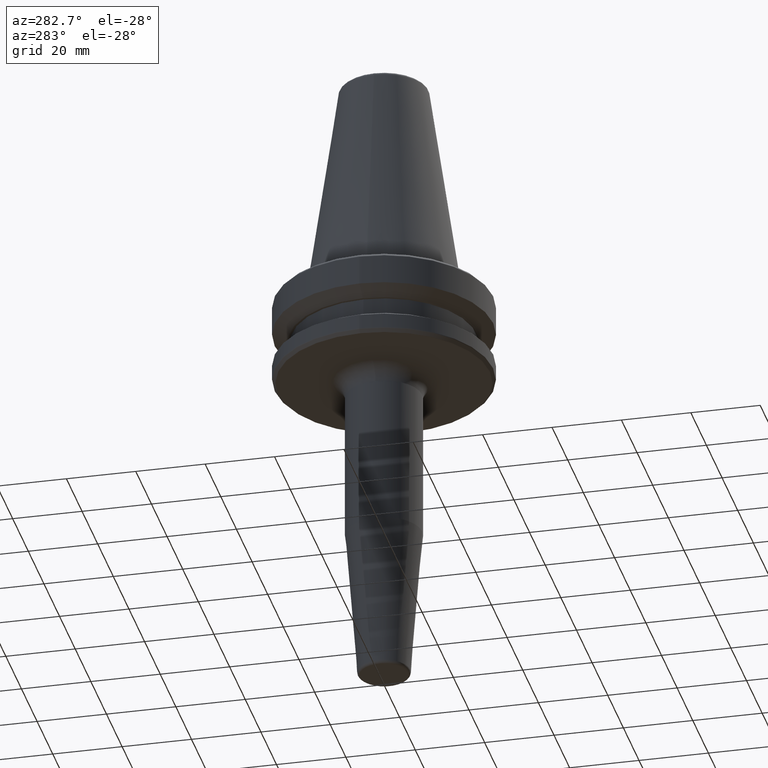
[diagram: clean part render]
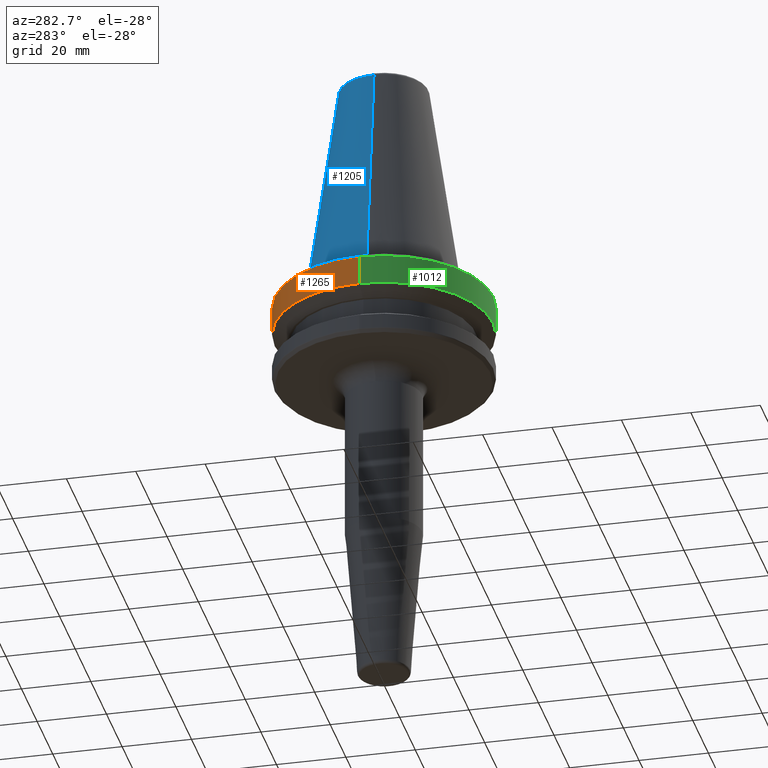
[diagram: same view with three faces highlighted in distinct colors, each labeled with its STEP entity id]
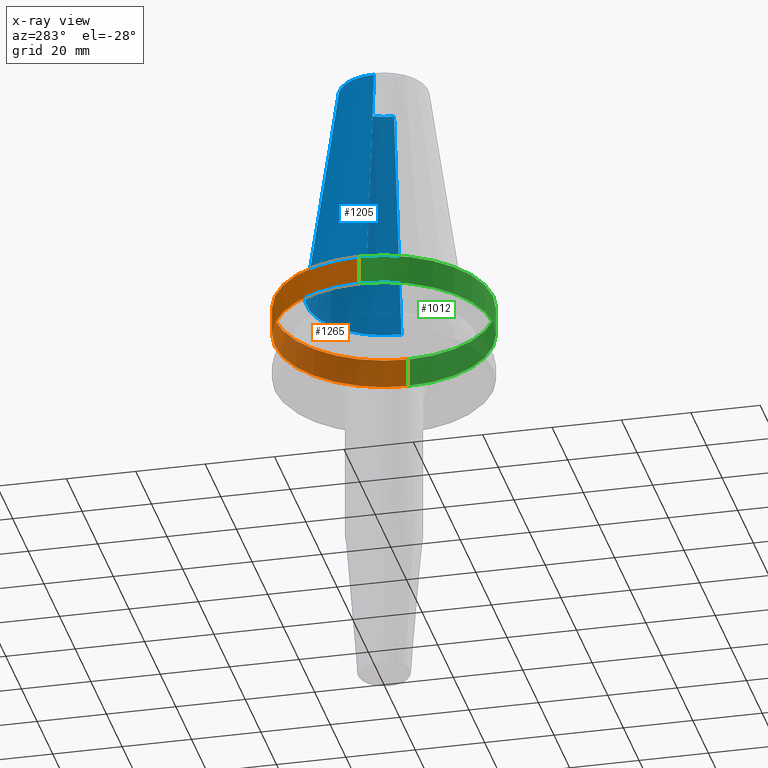
[diagram: x-ray of the same camera — body ghosted, the three highlighted faces saturated]
A machine part, auxiliary view with three faces highlighted in distinct colors.
The next image is the same camera in x-ray (body ghosted, the three faces saturated) — at least one of them is partly hidden behind the body in this view.
Their STEP definitions:

[orange] entity #1265 — the highlighted cylindrical surface (partial cylindrical patch) has radius 31.5 mm, axis along (-0, -0, 1).
#100 = DIRECTION ( 'NONE',  ( -0.0000000000000000000, -0.0000000000000000000, 1.000000000000000000 ) ) ;
#123 = VECTOR ( 'NONE', #497, 1000.000000000000000 ) ;
#176 = AXIS2_PLACEMENT_3D ( 'NONE', #395, #1076, #492 ) ;
#196 = CARTESIAN_POINT ( 'NONE',  ( 31.49999999999999300, 0.0000000000000000000, -3.165685424949243700 ) ) ;
#255 = VERTEX_POINT ( 'NONE', #875 ) ;
#263 = EDGE_CURVE ( 'NONE', #994, #764, #876, .T. ) ;
#323 = VECTOR ( 'NONE', #1147, 1000.000000000000000 ) ;
#395 = CARTESIAN_POINT ( 'NONE',  ( 0.0000000000000000000, 0.0000000000000000000, -3.165685424949243700 ) ) ;
#396 = ORIENTED_EDGE ( 'NONE', *, *, #263, .F. ) ;
#407 = EDGE_CURVE ( 'NONE', #994, #1175, #610, .T. ) ;
#416 = EDGE_CURVE ( 'NONE', #1175, #255, #571, .T. ) ;
#433 = AXIS2_PLACEMENT_3D ( 'NONE', #1270, #100, #585 ) ;
#492 = DIRECTION ( 'NONE',  ( 1.000000000000000000, 0.0000000000000000000, 0.0000000000000000000 ) ) ;
#494 = CIRCLE ( 'NONE', #176, 31.49999999999999300 ) ;
#497 = DIRECTION ( 'NONE',  ( -0.0000000000000000000, -0.0000000000000000000, 1.000000000000000000 ) ) ;
#514 = ORIENTED_EDGE ( 'NONE', *, *, #407, .T. ) ;
#519 = FACE_OUTER_BOUND ( 'NONE', #1089, .T. ) ;
#566 = CARTESIAN_POINT ( 'NONE',  ( -31.50000000000000000, 3.857637417314162700E-015, -11.59985799368323700 ) ) ;
#571 = LINE ( 'NONE', #1215, #323 ) ;
#585 = DIRECTION ( 'NONE',  ( 1.000000000000000000, 0.0000000000000000000, 0.0000000000000000000 ) ) ;
#610 = CIRCLE ( 'NONE', #661, 31.50000000000000000 ) ;
#654 = CARTESIAN_POINT ( 'NONE',  ( 0.0000000000000000000, 0.0000000000000000000, -11.59985799368323700 ) ) ;
#661 = AXIS2_PLACEMENT_3D ( 'NONE', #654, #1016, #779 ) ;
#691 = ORIENTED_EDGE ( 'NONE', *, *, #416, .T. ) ;
#764 = VERTEX_POINT ( 'NONE', #196 ) ;
#779 = DIRECTION ( 'NONE',  ( 1.000000000000000000, 0.0000000000000000000, 0.0000000000000000000 ) ) ;
#875 = CARTESIAN_POINT ( 'NONE',  ( -31.49999999999999300, 3.857637417314161900E-015, -3.165685424949243700 ) ) ;
#876 = LINE ( 'NONE', #939, #123 ) ;
#939 = CARTESIAN_POINT ( 'NONE',  ( 31.50000000000000000, 0.0000000000000000000, 69.75694866325665100 ) ) ;
#994 = VERTEX_POINT ( 'NONE', #1233 ) ;
#1016 = DIRECTION ( 'NONE',  ( -0.0000000000000000000, -0.0000000000000000000, 1.000000000000000000 ) ) ;
#1076 = DIRECTION ( 'NONE',  ( -0.0000000000000000000, -0.0000000000000000000, 1.000000000000000000 ) ) ;
#1089 = EDGE_LOOP ( 'NONE', ( #514, #691, #1171, #396 ) ) ;
#1147 = DIRECTION ( 'NONE',  ( -0.0000000000000000000, -0.0000000000000000000, 1.000000000000000000 ) ) ;
#1171 = ORIENTED_EDGE ( 'NONE', *, *, #1257, .F. ) ;
#1175 = VERTEX_POINT ( 'NONE', #566 ) ;
#1207 = CYLINDRICAL_SURFACE ( 'NONE', #433, 31.50000000000000000 ) ;
#1215 = CARTESIAN_POINT ( 'NONE',  ( -31.50000000000000000, 3.857637417314162700E-015, 69.75694866325665100 ) ) ;
#1233 = CARTESIAN_POINT ( 'NONE',  ( 31.50000000000000000, 0.0000000000000000000, -11.59985799368323700 ) ) ;
#1257 = EDGE_CURVE ( 'NONE', #764, #255, #494, .T. ) ;
#1265 = ADVANCED_FACE ( 'NONE', ( #519 ), #1207, .T. ) ;
#1270 = CARTESIAN_POINT ( 'NONE',  ( 0.0000000000000000000, 0.0000000000000000000, 69.75694866325665100 ) ) ;

[blue] entity #1205 — the highlighted conical surface has half-angle 8.297 deg.
#34 = LINE ( 'NONE', #374, #580 ) ;
#138 = CIRCLE ( 'NONE', #1163, 12.81219950706224800 ) ;
#260 = CIRCLE ( 'NONE', #1242, 22.22500000000000500 ) ;
#269 = VERTEX_POINT ( 'NONE', #868 ) ;
#280 = EDGE_CURVE ( 'NONE', #269, #421, #569, .T. ) ;
#293 = CARTESIAN_POINT ( 'NONE',  ( 0.0000000000000000000, 0.0000000000000000000, 64.54430822726730800 ) ) ;
#319 = VECTOR ( 'NONE', #783, 1000.000000000000000 ) ;
#350 = ORIENTED_EDGE ( 'NONE', *, *, #1125, .T. ) ;
#374 = CARTESIAN_POINT ( 'NONE',  ( 12.81219950706224800, 1.569041911636107800E-015, 64.54430822726730800 ) ) ;
#421 = VERTEX_POINT ( 'NONE', #774 ) ;
#485 = CARTESIAN_POINT ( 'NONE',  ( 0.0000000000000000000, 0.0000000000000000000, 0.0000000000000000000 ) ) ;
#543 = DIRECTION ( 'NONE',  ( 1.000000000000000000, 0.0000000000000000000, 0.0000000000000000000 ) ) ;
#547 = DIRECTION ( 'NONE',  ( -0.0000000000000000000, -0.0000000000000000000, 1.000000000000000000 ) ) ;
#569 = LINE ( 'NONE', #1245, #319 ) ;
#579 = DIRECTION ( 'NONE',  ( 1.000000000000000000, 0.0000000000000000000, 0.0000000000000000000 ) ) ;
#580 = VECTOR ( 'NONE', #663, 1000.000000000000000 ) ;
#663 = DIRECTION ( 'NONE',  ( 0.1443082272673071000, 1.767266086135364600E-017, -0.9895327864921743500 ) ) ;
#667 = EDGE_LOOP ( 'NONE', ( #1190, #350, #821, #1095 ) ) ;
#675 = DIRECTION ( 'NONE',  ( 0.0000000000000000000, 0.0000000000000000000, -1.000000000000000000 ) ) ;
#681 = EDGE_CURVE ( 'NONE', #1021, #269, #138, .T. ) ;
#723 = VERTEX_POINT ( 'NONE', #880 ) ;
#756 = CONICAL_SURFACE ( 'NONE', #988, 12.81219950706224800, 0.1448138465474191100 ) ;
#774 = CARTESIAN_POINT ( 'NONE',  ( -22.22500000000000500, 2.721777511104993200E-015, 0.0000000000000000000 ) ) ;
#783 = DIRECTION ( 'NONE',  ( -0.1443082272673071000, 0.0000000000000000000, -0.9895327864921743500 ) ) ;
#821 = ORIENTED_EDGE ( 'NONE', *, *, #1227, .T. ) ;
#828 = FACE_OUTER_BOUND ( 'NONE', #667, .T. ) ;
#868 = CARTESIAN_POINT ( 'NONE',  ( -12.81219950706224800, 0.0000000000000000000, 64.54430822726730800 ) ) ;
#880 = CARTESIAN_POINT ( 'NONE',  ( 22.22500000000000500, 0.0000000000000000000, 0.0000000000000000000 ) ) ;
#988 = AXIS2_PLACEMENT_3D ( 'NONE', #1059, #675, #1256 ) ;
#1021 = VERTEX_POINT ( 'NONE', #1132 ) ;
#1059 = CARTESIAN_POINT ( 'NONE',  ( 0.0000000000000000000, 0.0000000000000000000, 64.54430822726730800 ) ) ;
#1095 = ORIENTED_EDGE ( 'NONE', *, *, #280, .F. ) ;
#1125 = EDGE_CURVE ( 'NONE', #1021, #723, #34, .T. ) ;
#1132 = CARTESIAN_POINT ( 'NONE',  ( 12.81219950706224800, 2.145409711370550300E-015, 64.54430822726730800 ) ) ;
#1163 = AXIS2_PLACEMENT_3D ( 'NONE', #293, #547, #543 ) ;
#1166 = DIRECTION ( 'NONE',  ( -0.0000000000000000000, -0.0000000000000000000, 1.000000000000000000 ) ) ;
#1190 = ORIENTED_EDGE ( 'NONE', *, *, #681, .F. ) ;
#1205 = ADVANCED_FACE ( 'NONE', ( #828 ), #756, .T. ) ;
#1227 = EDGE_CURVE ( 'NONE', #723, #421, #260, .T. ) ;
#1242 = AXIS2_PLACEMENT_3D ( 'NONE', #485, #1166, #579 ) ;
#1245 = CARTESIAN_POINT ( 'NONE',  ( -12.81219950706224800, 0.0000000000000000000, 64.54430822726730800 ) ) ;
#1256 = DIRECTION ( 'NONE',  ( -1.000000000000000000, 0.0000000000000000000, 0.0000000000000000000 ) ) ;

[green] entity #1012 — the highlighted cylindrical surface (partial cylindrical patch) has radius 31.5 mm, axis along (-0, -0, 1).
#55 = CIRCLE ( 'NONE', #728, 31.49999999999999300 ) ;
#123 = VECTOR ( 'NONE', #497, 1000.000000000000000 ) ;
#160 = CARTESIAN_POINT ( 'NONE',  ( 0.0000000000000000000, 0.0000000000000000000, 69.75694866325665100 ) ) ;
#192 = EDGE_CURVE ( 'NONE', #1175, #994, #707, .T. ) ;
#194 = DIRECTION ( 'NONE',  ( -0.0000000000000000000, -0.0000000000000000000, 1.000000000000000000 ) ) ;
#196 = CARTESIAN_POINT ( 'NONE',  ( 31.49999999999999300, 0.0000000000000000000, -3.165685424949243700 ) ) ;
#203 = ORIENTED_EDGE ( 'NONE', *, *, #192, .T. ) ;
#255 = VERTEX_POINT ( 'NONE', #875 ) ;
#261 = AXIS2_PLACEMENT_3D ( 'NONE', #160, #949, #753 ) ;
#263 = EDGE_CURVE ( 'NONE', #994, #764, #876, .T. ) ;
#272 = CARTESIAN_POINT ( 'NONE',  ( 0.0000000000000000000, 0.0000000000000000000, -3.165685424949243700 ) ) ;
#323 = VECTOR ( 'NONE', #1147, 1000.000000000000000 ) ;
#353 = FACE_OUTER_BOUND ( 'NONE', #570, .T. ) ;
#375 = DIRECTION ( 'NONE',  ( 1.000000000000000000, 0.0000000000000000000, 0.0000000000000000000 ) ) ;
#416 = EDGE_CURVE ( 'NONE', #1175, #255, #571, .T. ) ;
#497 = DIRECTION ( 'NONE',  ( -0.0000000000000000000, -0.0000000000000000000, 1.000000000000000000 ) ) ;
#566 = CARTESIAN_POINT ( 'NONE',  ( -31.50000000000000000, 3.857637417314162700E-015, -11.59985799368323700 ) ) ;
#570 = EDGE_LOOP ( 'NONE', ( #1213, #203, #1116, #860 ) ) ;
#571 = LINE ( 'NONE', #1215, #323 ) ;
#672 = CYLINDRICAL_SURFACE ( 'NONE', #261, 31.50000000000000000 ) ;
#707 = CIRCLE ( 'NONE', #1107, 31.50000000000000000 ) ;
#728 = AXIS2_PLACEMENT_3D ( 'NONE', #272, #965, #375 ) ;
#753 = DIRECTION ( 'NONE',  ( 1.000000000000000000, 0.0000000000000000000, 0.0000000000000000000 ) ) ;
#764 = VERTEX_POINT ( 'NONE', #196 ) ;
#860 = ORIENTED_EDGE ( 'NONE', *, *, #1127, .F. ) ;
#875 = CARTESIAN_POINT ( 'NONE',  ( -31.49999999999999300, 3.857637417314161900E-015, -3.165685424949243700 ) ) ;
#876 = LINE ( 'NONE', #939, #123 ) ;
#883 = DIRECTION ( 'NONE',  ( 1.000000000000000000, 0.0000000000000000000, 0.0000000000000000000 ) ) ;
#939 = CARTESIAN_POINT ( 'NONE',  ( 31.50000000000000000, 0.0000000000000000000, 69.75694866325665100 ) ) ;
#949 = DIRECTION ( 'NONE',  ( -0.0000000000000000000, -0.0000000000000000000, 1.000000000000000000 ) ) ;
#965 = DIRECTION ( 'NONE',  ( -0.0000000000000000000, -0.0000000000000000000, 1.000000000000000000 ) ) ;
#994 = VERTEX_POINT ( 'NONE', #1233 ) ;
#1012 = ADVANCED_FACE ( 'NONE', ( #353 ), #672, .T. ) ;
#1061 = CARTESIAN_POINT ( 'NONE',  ( 0.0000000000000000000, 0.0000000000000000000, -11.59985799368323700 ) ) ;
#1107 = AXIS2_PLACEMENT_3D ( 'NONE', #1061, #194, #883 ) ;
#1116 = ORIENTED_EDGE ( 'NONE', *, *, #263, .T. ) ;
#1127 = EDGE_CURVE ( 'NONE', #255, #764, #55, .T. ) ;
#1147 = DIRECTION ( 'NONE',  ( -0.0000000000000000000, -0.0000000000000000000, 1.000000000000000000 ) ) ;
#1175 = VERTEX_POINT ( 'NONE', #566 ) ;
#1213 = ORIENTED_EDGE ( 'NONE', *, *, #416, .F. ) ;
#1215 = CARTESIAN_POINT ( 'NONE',  ( -31.50000000000000000, 3.857637417314162700E-015, 69.75694866325665100 ) ) ;
#1233 = CARTESIAN_POINT ( 'NONE',  ( 31.50000000000000000, 0.0000000000000000000, -11.59985799368323700 ) ) ;